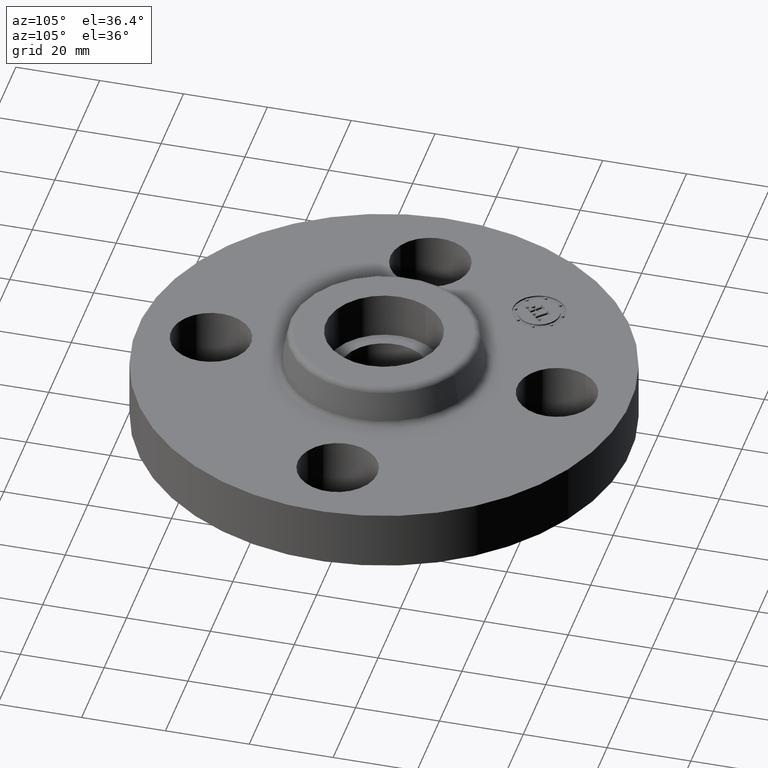
[diagram: clean part render]
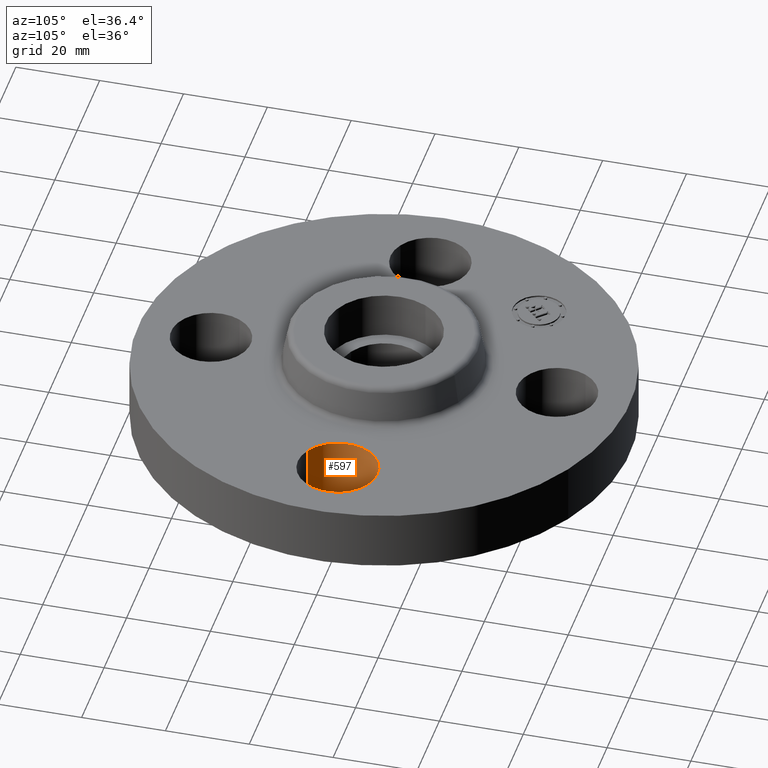
[diagram: same view with one face highlighted and labeled with its STEP entity id]
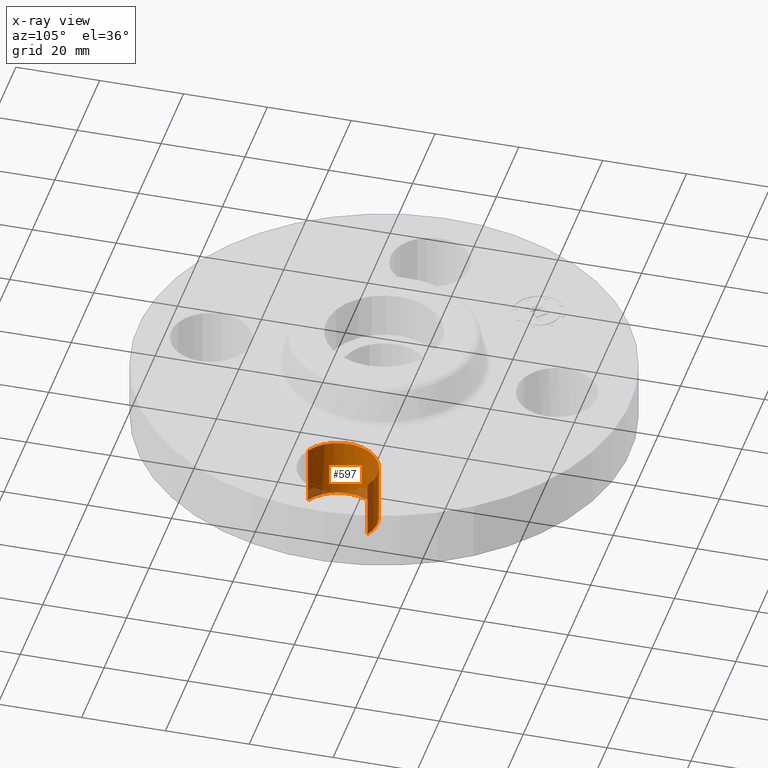
[diagram: x-ray of the same camera — body ghosted, the highlighted face saturated]
A machine part, auxiliary view. The second image highlights one B-rep face of the part: STEP entity #597.
The next image is the same camera in x-ray: the body ghosted, the highlighted face saturated — about 8% of this face is hidden behind the body in this view.
In plain terms, the highlighted cylindrical surface (partial cylindrical patch) has radius 9.525 mm, axis along (0, -0, -1).
Its self-contained STEP definition (entity closure, byte-faithful):
#347=AXIS2_PLACEMENT_3D('Circle Axis2P3D',#345,#346,$) ;
#361=AXIS2_PLACEMENT_3D('Circle Axis2P3D',#359,#360,$) ;
#557=AXIS2_PLACEMENT_3D('Cylinder Axis2P3D',#554,#555,#556) ;
#587=AXIS2_PLACEMENT_3D('Circle Axis2P3D',#585,#586,$) ;
#279=CARTESIAN_POINT('Vertex',(1.25000000001,-1.39870617276E-016,0.)) ;
#345=CARTESIAN_POINT('Axis2P3D Location',(1.62500000001,-1.39870617276E-016,0.)) ;
#349=CARTESIAN_POINT('Vertex',(1.44521542303,-0.32909346071,6.99353086378E-017)) ;
#356=CARTESIAN_POINT('Vertex',(1.80478457698,0.32909346071,0.)) ;
#359=CARTESIAN_POINT('Axis2P3D Location',(1.62500000001,-1.39870617276E-016,0.)) ;
#554=CARTESIAN_POINT('Axis2P3D Location',(1.62500000001,-1.8023868212E-016,0.556062992128)) ;
#559=CARTESIAN_POINT('Line Origine',(1.80478457698,0.32909346071,0.280000000001)) ;
#563=CARTESIAN_POINT('Vertex',(1.80478457698,0.32909346071,0.560000000002)) ;
#566=CARTESIAN_POINT('Line Origine',(1.44521542303,-0.32909346071,0.280000000001)) ;
#570=CARTESIAN_POINT('Vertex',(1.44521542303,-0.32909346071,0.560000000002)) ;
#585=CARTESIAN_POINT('Axis2P3D Location',(1.62500000001,-1.8023868212E-016,0.560000000002)) ;
#346=DIRECTION('Axis2P3D Direction',(0.,0.,-0.0393700787402)) ;
#360=DIRECTION('Axis2P3D Direction',(0.,0.,-0.0393700787402)) ;
#555=DIRECTION('Axis2P3D Direction',(0.,-0.,-0.0393700787402)) ;
#556=DIRECTION('Axis2P3D XDirection',(-0.0188750212049,-0.0345504945626,0.)) ;
#560=DIRECTION('Vector Direction',(0.,0.,-0.0393700787402)) ;
#567=DIRECTION('Vector Direction',(0.,0.,-0.0393700787402)) ;
#586=DIRECTION('Axis2P3D Direction',(0.,-0.,-0.0393700787402)) ;
#561=VECTOR('Line Direction',#560,0.0393700787402) ;
#568=VECTOR('Line Direction',#567,0.0393700787402) ;
#591=ORIENTED_EDGE('',*,*,#572,.F.) ;
#592=ORIENTED_EDGE('',*,*,#351,.T.) ;
#593=ORIENTED_EDGE('',*,*,#363,.T.) ;
#594=ORIENTED_EDGE('',*,*,#565,.T.) ;
#595=ORIENTED_EDGE('',*,*,#589,.F.) ;
#597=ADVANCED_FACE('PartBody',(#596),#558,.F.) ;
#348=CIRCLE('generated circle',#347,0.375000000001) ;
#362=CIRCLE('generated circle',#361,0.375000000001) ;
#588=CIRCLE('generated circle',#587,0.375000000001) ;
#558=CYLINDRICAL_SURFACE('generated cylinder',#557,0.375000000001) ;
#351=EDGE_CURVE('',#350,#280,#348,.T.) ;
#363=EDGE_CURVE('',#280,#357,#362,.T.) ;
#565=EDGE_CURVE('',#357,#564,#562,.F.) ;
#572=EDGE_CURVE('',#350,#571,#569,.F.) ;
#589=EDGE_CURVE('',#571,#564,#588,.T.) ;
#590=EDGE_LOOP('',(#591,#592,#593,#594,#595)) ;
#596=FACE_OUTER_BOUND('',#590,.T.) ;
#562=LINE('Line',#559,#561) ;
#569=LINE('Line',#566,#568) ;
#280=VERTEX_POINT('',#279) ;
#350=VERTEX_POINT('',#349) ;
#357=VERTEX_POINT('',#356) ;
#564=VERTEX_POINT('',#563) ;
#571=VERTEX_POINT('',#570) ;